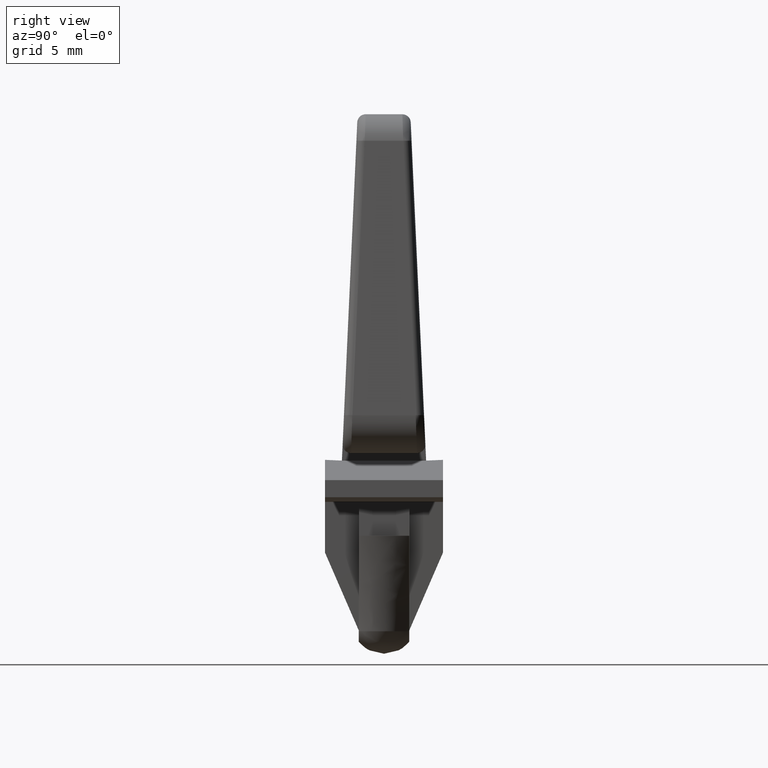
[diagram: clean part render]
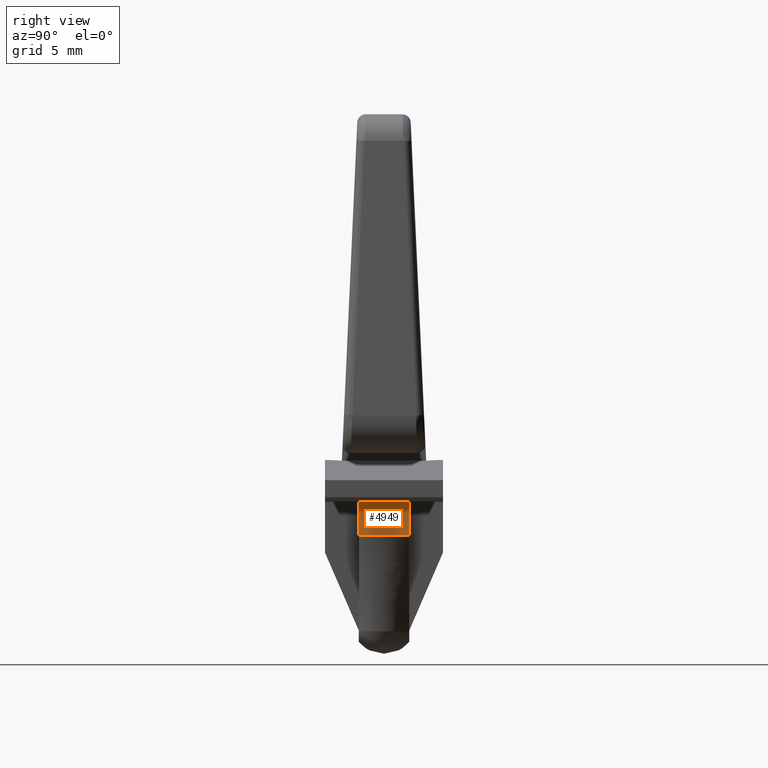
[diagram: same view with one face highlighted and labeled with its STEP entity id]
A machine part, right view. The second image highlights one B-rep face of the part: STEP entity #4949.
In plain terms, the highlighted face is a freeform B-spline surface patch.
Its self-contained STEP definition (entity closure, byte-faithful):
#4914=CARTESIAN_POINT('',(2.399999999999795,-1.649849994185421,-8.599851594575490));
#4915=CARTESIAN_POINT('',(2.399999999999795,-1.649849994185421,-6.401117351806319));
#4916=CARTESIAN_POINT('',(2.399999999999795,1.649850074651746,-8.599851594575490));
#4917=CARTESIAN_POINT('',(2.399999999999795,1.649850074651746,-6.401117351806319));
#4918=B_SPLINE_SURFACE_WITH_KNOTS('',1,1,((#4914,#4916),(#4915,#4917)),.UNSPECIFIED.,.F.,.F.,.U.,(2,2),(2,2),(0.0,2.198734242769172),(0.0,3.299700068837167),.UNSPECIFIED.);
#4919=CARTESIAN_POINT('',(2.399999999999795,-1.499999999999946,-6.500969000000000));
#4920=VERTEX_POINT('',#4919);
#4921=CARTESIAN_POINT('',(2.399999999999795,-1.500000000000000,-8.500000000000000));
#4922=VERTEX_POINT('',#4921);
#4923=CARTESIAN_POINT('',(2.399999999999795,-1.499999999999946,-6.500969000000000));
#4924=CARTESIAN_POINT('',(2.399999999999795,-1.500000000000000,-8.500000000000000));
#4925=QUASI_UNIFORM_CURVE('',1,(#4923,#4924),.UNSPECIFIED.,.F.,.U.);
#4926=EDGE_CURVE('',#4920,#4922,#4925,.T.);
#4927=ORIENTED_EDGE('',*,*,#4926,.T.);
#4928=CARTESIAN_POINT('',(2.399999999999795,1.500000000000000,-8.500000000000000));
#4929=VERTEX_POINT('',#4928);
#4930=CARTESIAN_POINT('',(2.399999999999795,1.500000000000000,-8.500000000000000));
#4931=CARTESIAN_POINT('',(2.399999999999795,-1.500000000000000,-8.500000000000000));
#4932=QUASI_UNIFORM_CURVE('',1,(#4930,#4931),.UNSPECIFIED.,.F.,.U.);
#4933=EDGE_CURVE('',#4929,#4922,#4932,.T.);
#4934=ORIENTED_EDGE('',*,*,#4933,.F.);
#4935=CARTESIAN_POINT('',(2.399999999999795,1.500000000000055,-6.500969000000000));
#4936=VERTEX_POINT('',#4935);
#4937=CARTESIAN_POINT('',(2.399999999999795,1.500000000000055,-6.500969000000000));
#4938=CARTESIAN_POINT('',(2.399999999999795,1.500000000000000,-8.500000000000000));
#4939=QUASI_UNIFORM_CURVE('',1,(#4937,#4938),.UNSPECIFIED.,.F.,.U.);
#4940=EDGE_CURVE('',#4936,#4929,#4939,.T.);
#4941=ORIENTED_EDGE('',*,*,#4940,.F.);
#4942=CARTESIAN_POINT('',(2.399999999999795,1.500000000000055,-6.500969000000000));
#4943=CARTESIAN_POINT('',(2.399999999999795,-1.499999999999946,-6.500969000000000));
#4944=QUASI_UNIFORM_CURVE('',1,(#4942,#4943),.UNSPECIFIED.,.F.,.U.);
#4945=EDGE_CURVE('',#4936,#4920,#4944,.T.);
#4946=ORIENTED_EDGE('',*,*,#4945,.T.);
#4947=EDGE_LOOP('',(#4927,#4934,#4941,#4946));
#4948=FACE_OUTER_BOUND('',#4947,.T.);
#4949=ADVANCED_FACE('',(#4948),#4918,.F.);